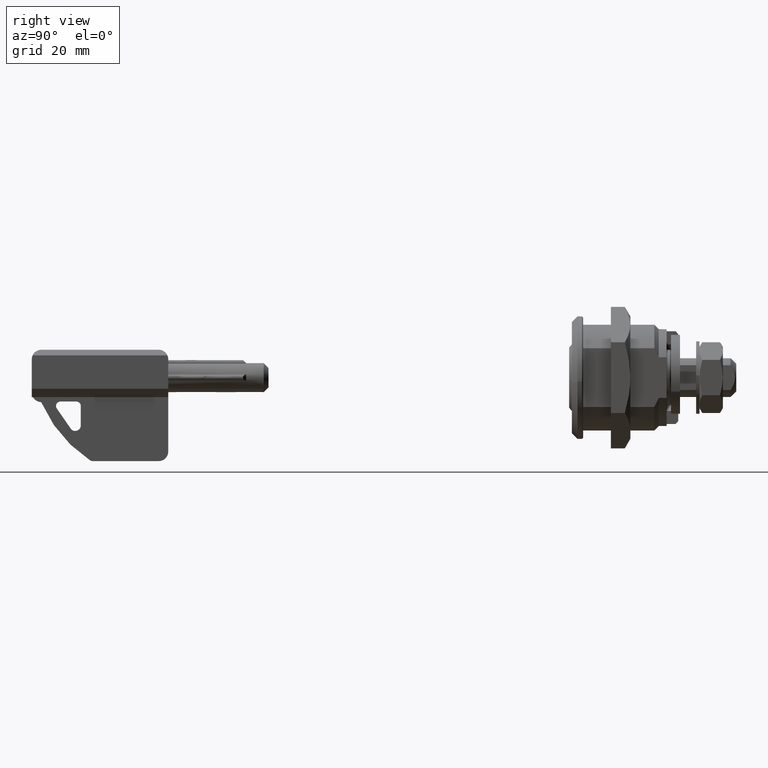
[diagram: clean part render]
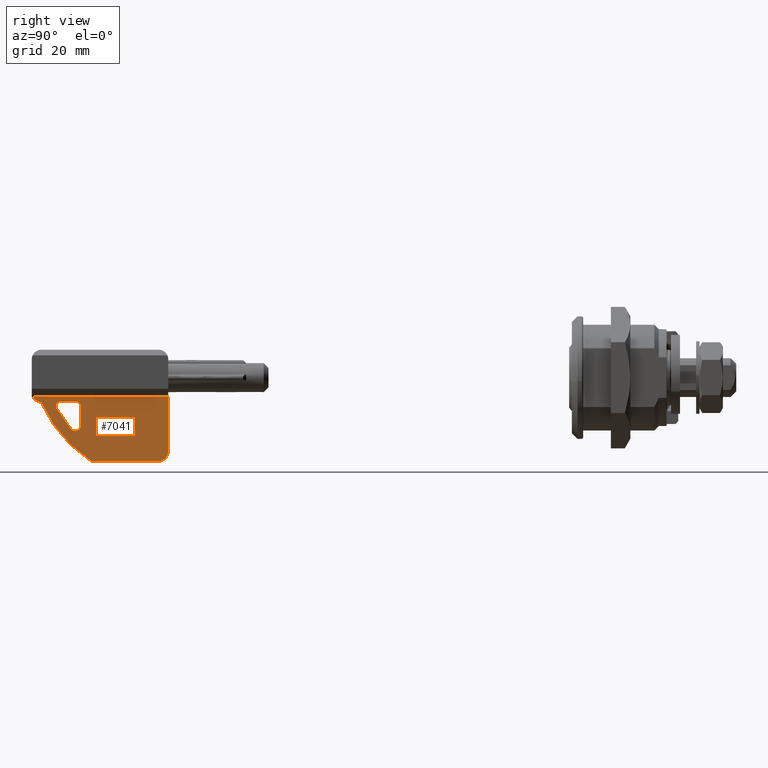
[diagram: same view with one face highlighted and labeled with its STEP entity id]
A machine part, right view. The second image highlights one B-rep face of the part: STEP entity #7041.
In plain terms, the highlighted face is a freeform B-spline surface patch.
Its self-contained STEP definition (entity closure, byte-faithful):
#5738=CARTESIAN_POINT('',(2.499999999999939,-91.957008043144981,-9.235001828766380));
#5739=VERTEX_POINT('',#5738);
#5740=CARTESIAN_POINT('',(2.499999999999940,-90.199999999999989,-8.581596000000001));
#5741=VERTEX_POINT('',#5740);
#5742=CARTESIAN_POINT('',(2.499999999999939,-91.957008043144981,-9.235001828766380));
#5743=CARTESIAN_POINT('',(2.499999999999938,-91.857950237136265,-9.350170292680090));
#5744=CARTESIAN_POINT('',(2.499999999999942,-91.679534418455745,-9.479996295463922));
#5745=CARTESIAN_POINT('',(2.499999999999941,-91.376697034745888,-9.576396729231558));
#5746=CARTESIAN_POINT('',(2.499999999999941,-91.082857467282082,-9.594588141742097));
#5747=CARTESIAN_POINT('',(2.499999999999938,-90.773365531317665,-9.505554161759511));
#5748=CARTESIAN_POINT('',(2.499999999999941,-90.499944264340371,-9.317321993710459));
#5749=CARTESIAN_POINT('',(2.499999999999941,-90.270294044090434,-9.024203221437105));
#5750=CARTESIAN_POINT('',(2.499999999999935,-90.199656665287193,-8.746161012547757));
#5751=CARTESIAN_POINT('',(2.499999999999940,-90.199999999999989,-8.581596000000001));
#5752=B_SPLINE_CURVE_WITH_KNOTS('',3,(#5742,#5743,#5744,#5745,#5746,#5747,#5748,#5749,#5750,#5751),.UNSPECIFIED.,.F.,.U.,(4,1,1,1,1,1,1,4),(0.000001352755180,0.455561333812272,0.645391394294619,0.949102331557300,1.328674688485322,1.594463015069902,1.936139648176862,2.429663858491745),.UNSPECIFIED.);
#5753=EDGE_CURVE('',#5739,#5741,#5752,.T.);
#5799=CARTESIAN_POINT('',(2.499999999999994,-98.799999999999983,-3.500000000000000));
#5800=VERTEX_POINT('',#5799);
#5801=CARTESIAN_POINT('',(2.499999999999939,-97.471533265765402,-4.391323842064490));
#5802=VERTEX_POINT('',#5801);
#5803=CARTESIAN_POINT('',(2.499999999999939,-98.799999999999983,-3.500000000000000));
#5804=CARTESIAN_POINT('',(2.499999999999939,-98.373410180786820,-4.299855911024627));
#5805=CARTESIAN_POINT('',(2.499999999999939,-97.471533265765402,-4.391323842064510));
#5813=(BOUNDED_CURVE()B_SPLINE_CURVE(2,(#5803,#5804,#5805),.UNSPECIFIED.,.F.,.U.)CURVE()GEOMETRIC_REPRESENTATION_ITEM()QUASI_UNIFORM_CURVE()RATIONAL_B_SPLINE_CURVE((1.0,0.882388133837359,1.0))REPRESENTATION_ITEM(''));
#5814=EDGE_CURVE('',#5800,#5802,#5813,.T.);
#5860=CARTESIAN_POINT('',(2.499999999999939,-97.226755953311425,-4.570006867697241));
#5861=VERTEX_POINT('',#5860);
#5862=CARTESIAN_POINT('',(2.499999999999939,-97.226755953311340,-4.570006867697209));
#5863=CARTESIAN_POINT('',(2.499999999999939,-97.296858836974337,-4.409039240187018));
#5864=CARTESIAN_POINT('',(2.499999999999939,-97.471533265765402,-4.391323842064485));
#5872=(BOUNDED_CURVE()B_SPLINE_CURVE(2,(#5862,#5863,#5864),.UNSPECIFIED.,.F.,.U.)CURVE()GEOMETRIC_REPRESENTATION_ITEM()QUASI_UNIFORM_CURVE()RATIONAL_B_SPLINE_CURVE((1.0,0.863063734704756,1.0))REPRESENTATION_ITEM(''));
#5873=EDGE_CURVE('',#5861,#5802,#5872,.T.);
#5913=CARTESIAN_POINT('',(2.499999999999939,-94.555536504158994,-5.483119652173880));
#5914=VERTEX_POINT('',#5913);
#5915=CARTESIAN_POINT('',(2.499999999999939,-94.555536504158852,-5.483119652173821));
#5916=CARTESIAN_POINT('',(2.499999999999939,-93.456509435962914,-7.497743657664030));
#5917=CARTESIAN_POINT('',(2.499999999999939,-91.957008043144981,-9.235001828766379));
#5925=(BOUNDED_CURVE()B_SPLINE_CURVE(2,(#5915,#5916,#5917),.UNSPECIFIED.,.F.,.U.)CURVE()GEOMETRIC_REPRESENTATION_ITEM()QUASI_UNIFORM_CURVE()RATIONAL_B_SPLINE_CURVE((1.0,0.994351551563336,1.0))REPRESENTATION_ITEM(''));
#5926=EDGE_CURVE('',#5914,#5739,#5925,.T.);
#5966=CARTESIAN_POINT('',(2.499999999999939,-93.853240745864809,-4.299999999999955));
#5967=VERTEX_POINT('',#5966);
#5968=CARTESIAN_POINT('',(2.499999999999939,-93.853240745864809,-4.299999999999955));
#5969=CARTESIAN_POINT('',(2.499999999999947,-94.008673549155048,-4.299466492589677));
#5970=CARTESIAN_POINT('',(2.499999999999929,-94.232263279966475,-4.367372639140383));
#5971=CARTESIAN_POINT('',(2.499999999999946,-94.482619180053916,-4.583362681219767));
#5972=CARTESIAN_POINT('',(2.499999999999936,-94.608174169881920,-4.794928935329138));
#5973=CARTESIAN_POINT('',(2.499999999999946,-94.677869757666002,-5.118107699867044));
#5974=CARTESIAN_POINT('',(2.499999999999938,-94.630493013010664,-5.346938253842120));
#5975=CARTESIAN_POINT('',(2.499999999999939,-94.555536504158994,-5.483119652173880));
#5976=B_SPLINE_CURVE_WITH_KNOTS('',3,(#5968,#5969,#5970,#5971,#5972,#5973,#5974,#5975),.UNSPECIFIED.,.F.,.U.,(4,1,1,1,1,4),(0.000001214628321,0.465891520405137,0.672985121225650,0.983469461829939,1.190558524693867,1.656446000580683),.UNSPECIFIED.);
#5977=EDGE_CURVE('',#5967,#5914,#5976,.T.);
#6006=CARTESIAN_POINT('',(2.499999999999940,-91.0,-4.299999999999955));
#6007=VERTEX_POINT('',#6006);
#6008=CARTESIAN_POINT('',(2.499999999999940,-91.0,-4.299999999999955));
#6009=CARTESIAN_POINT('',(2.499999999999939,-93.853240745864809,-4.299999999999955));
#6010=QUASI_UNIFORM_CURVE('',1,(#6008,#6009),.UNSPECIFIED.,.F.,.U.);
#6011=EDGE_CURVE('',#6007,#5967,#6010,.T.);
#6043=CARTESIAN_POINT('',(2.499999999999940,-90.199999999999989,-5.100000000000001));
#6044=VERTEX_POINT('',#6043);
#6045=CARTESIAN_POINT('',(2.499999999999940,-90.199999999999989,-5.100000000000001));
#6046=CARTESIAN_POINT('',(2.499999999999939,-90.199999999999989,-4.300000000000001));
#6047=CARTESIAN_POINT('',(2.499999999999940,-91.0,-4.300000000000000));
#6055=(BOUNDED_CURVE()B_SPLINE_CURVE(2,(#6045,#6046,#6047),.UNSPECIFIED.,.F.,.U.)CURVE()GEOMETRIC_REPRESENTATION_ITEM()QUASI_UNIFORM_CURVE()RATIONAL_B_SPLINE_CURVE((1.0,0.707106781186548,1.0))REPRESENTATION_ITEM(''));
#6056=EDGE_CURVE('',#6044,#6007,#6055,.T.);
#6087=CARTESIAN_POINT('',(2.499999999999940,-90.199999999999989,-8.581596000000001));
#6088=CARTESIAN_POINT('',(2.499999999999940,-90.199999999999989,-5.100000000000001));
#6089=QUASI_UNIFORM_CURVE('',1,(#6087,#6088),.UNSPECIFIED.,.F.,.U.);
#6090=EDGE_CURVE('',#5741,#6044,#6089,.T.);
#6409=CARTESIAN_POINT('',(2.499999999999996,-74.500000000000000,-3.500000000000000));
#6410=VERTEX_POINT('',#6409);
#6425=CARTESIAN_POINT('',(2.499999999999994,-98.799999999999983,-3.500000000000000));
#6426=CARTESIAN_POINT('',(2.499999999999996,-74.500000000000000,-3.500000000000000));
#6427=QUASI_UNIFORM_CURVE('',1,(#6425,#6426),.UNSPECIFIED.,.F.,.U.);
#6428=EDGE_CURVE('',#5800,#6410,#6427,.T.);
#6966=CARTESIAN_POINT('',(2.499999999999994,-100.013784952901900,-2.925575022289232));
#6967=CARTESIAN_POINT('',(2.499999999999996,-73.286214395321323,-2.925575022289232));
#6968=CARTESIAN_POINT('',(2.499999999999994,-100.013784952901900,-15.574425286164800));
#6969=CARTESIAN_POINT('',(2.499999999999996,-73.286214395321323,-15.574425286164800));
#6970=B_SPLINE_SURFACE_WITH_KNOTS('',1,1,((#6966,#6968),(#6967,#6969)),.UNSPECIFIED.,.F.,.F.,.U.,(2,2),(2,2),(0.0,26.727570557580538),(0.0,12.648850263875570),.UNSPECIFIED.);
#6971=ORIENTED_EDGE('',*,*,#5873,.F.);
#6972=CARTESIAN_POINT('',(2.499999999999940,-88.571352254903388,-14.836143171498939));
#6973=VERTEX_POINT('',#6972);
#6974=CARTESIAN_POINT('',(2.499999999999939,-97.226755953311340,-4.570006867697209));
#6975=CARTESIAN_POINT('',(2.499999999999940,-94.429361154121125,-10.993280497922338));
#6976=CARTESIAN_POINT('',(2.499999999999940,-88.571352490228719,-14.836143530225741));
#6984=(BOUNDED_CURVE()B_SPLINE_CURVE(2,(#6974,#6975,#6976),.UNSPECIFIED.,.F.,.U.)CURVE()GEOMETRIC_REPRESENTATION_ITEM()QUASI_UNIFORM_CURVE()RATIONAL_B_SPLINE_CURVE((1.0,0.958318853204988,1.0))REPRESENTATION_ITEM(''));
#6985=EDGE_CURVE('',#5861,#6973,#6984,.T.);
#6986=ORIENTED_EDGE('',*,*,#6985,.T.);
#6987=CARTESIAN_POINT('',(2.499999999999940,-88.022841000000000,-15.0));
#6988=VERTEX_POINT('',#6987);
#6989=CARTESIAN_POINT('',(2.499999999999940,-88.571352254903388,-14.836143171498950));
#6990=CARTESIAN_POINT('',(2.499999999999939,-88.321571111800381,-15.000000000000004));
#6991=CARTESIAN_POINT('',(2.499999999999940,-88.022841000000000,-15.0));
#6999=(BOUNDED_CURVE()B_SPLINE_CURVE(2,(#6989,#6990,#6991),.UNSPECIFIED.,.F.,.U.)CURVE()GEOMETRIC_REPRESENTATION_ITEM()QUASI_UNIFORM_CURVE()RATIONAL_B_SPLINE_CURVE((1.0,0.958160521911372,1.0))REPRESENTATION_ITEM(''));
#7000=EDGE_CURVE('',#6973,#6988,#6999,.T.);
#7001=ORIENTED_EDGE('',*,*,#7000,.T.);
#7002=CARTESIAN_POINT('',(2.499999999999941,-76.200000000000003,-15.0));
#7003=VERTEX_POINT('',#7002);
#7004=CARTESIAN_POINT('',(2.499999999999941,-76.200000000000003,-15.0));
#7005=CARTESIAN_POINT('',(2.499999999999940,-88.022841000000000,-15.0));
#7006=QUASI_UNIFORM_CURVE('',1,(#7004,#7005),.UNSPECIFIED.,.F.,.U.);
#7007=EDGE_CURVE('',#7003,#6988,#7006,.T.);
#7008=ORIENTED_EDGE('',*,*,#7007,.F.);
#7009=CARTESIAN_POINT('',(2.499999999999941,-74.500000000000000,-13.300000000000001));
#7010=VERTEX_POINT('',#7009);
#7011=CARTESIAN_POINT('',(2.499999999999941,-76.200000000000003,-15.0));
#7012=CARTESIAN_POINT('',(2.499999999999941,-74.500000000000000,-14.999999999999995));
#7013=CARTESIAN_POINT('',(2.499999999999941,-74.500000000000014,-13.300000000000001));
#7021=(BOUNDED_CURVE()B_SPLINE_CURVE(2,(#7011,#7012,#7013),.UNSPECIFIED.,.F.,.U.)CURVE()GEOMETRIC_REPRESENTATION_ITEM()QUASI_UNIFORM_CURVE()RATIONAL_B_SPLINE_CURVE((1.0,0.707106781186548,1.0))REPRESENTATION_ITEM(''));
#7022=EDGE_CURVE('',#7003,#7010,#7021,.T.);
#7023=ORIENTED_EDGE('',*,*,#7022,.T.);
#7024=CARTESIAN_POINT('',(2.499999999999996,-74.500000000000000,-3.500000000000000));
#7025=CARTESIAN_POINT('',(2.499999999999941,-74.500000000000000,-13.300000000000001));
#7026=QUASI_UNIFORM_CURVE('',1,(#7024,#7025),.UNSPECIFIED.,.F.,.U.);
#7027=EDGE_CURVE('',#6410,#7010,#7026,.T.);
#7028=ORIENTED_EDGE('',*,*,#7027,.F.);
#7029=ORIENTED_EDGE('',*,*,#6428,.F.);
#7030=ORIENTED_EDGE('',*,*,#5814,.T.);
#7031=EDGE_LOOP('',(#6971,#6986,#7001,#7008,#7023,#7028,#7029,#7030));
#7032=FACE_OUTER_BOUND('',#7031,.T.);
#7033=ORIENTED_EDGE('',*,*,#6090,.F.);
#7034=ORIENTED_EDGE('',*,*,#5753,.F.);
#7035=ORIENTED_EDGE('',*,*,#5926,.F.);
#7036=ORIENTED_EDGE('',*,*,#5977,.F.);
#7037=ORIENTED_EDGE('',*,*,#6011,.F.);
#7038=ORIENTED_EDGE('',*,*,#6056,.F.);
#7039=EDGE_LOOP('',(#7033,#7034,#7035,#7036,#7037,#7038));
#7040=FACE_BOUND('',#7039,.T.);
#7041=ADVANCED_FACE('',(#7032,#7040),#6970,.F.);